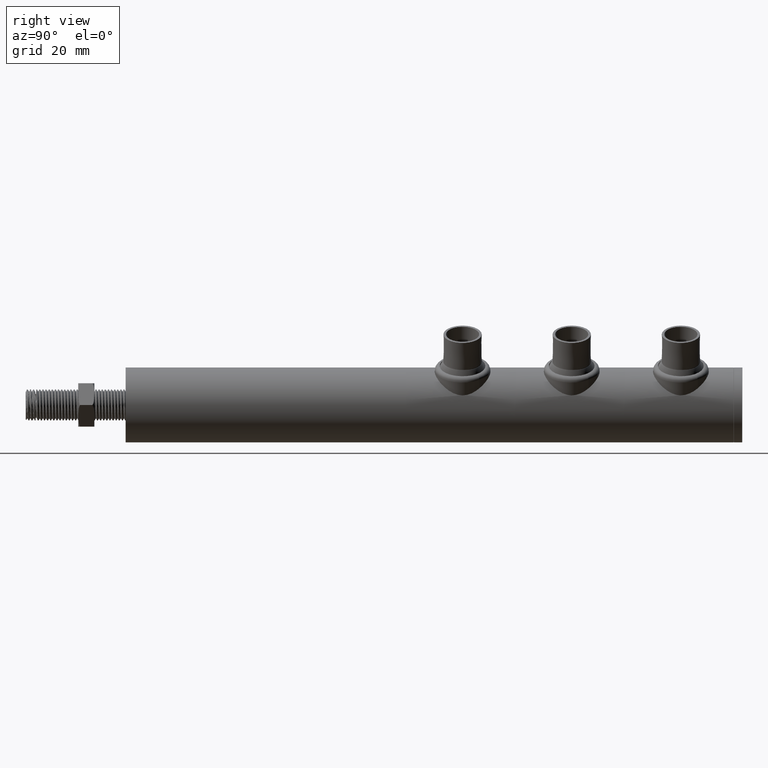
[diagram: clean part render]
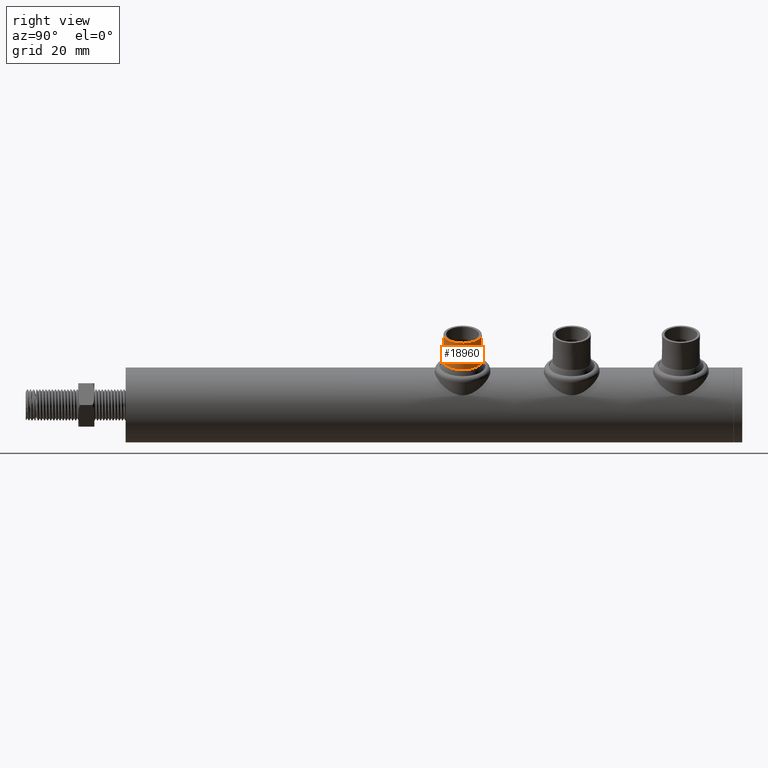
[diagram: same view with one face highlighted and labeled with its STEP entity id]
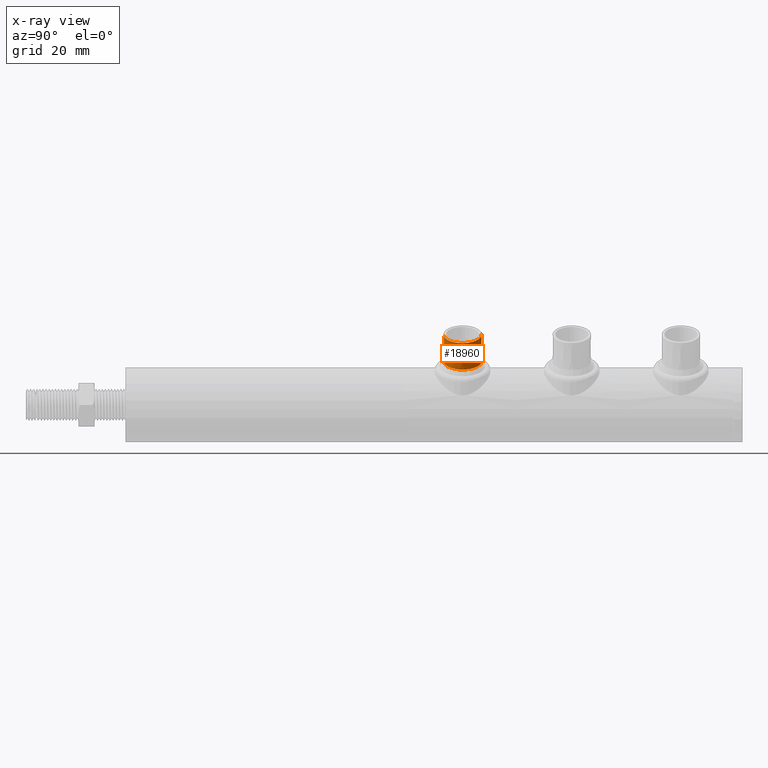
[diagram: x-ray of the same camera — body ghosted, the highlighted face saturated]
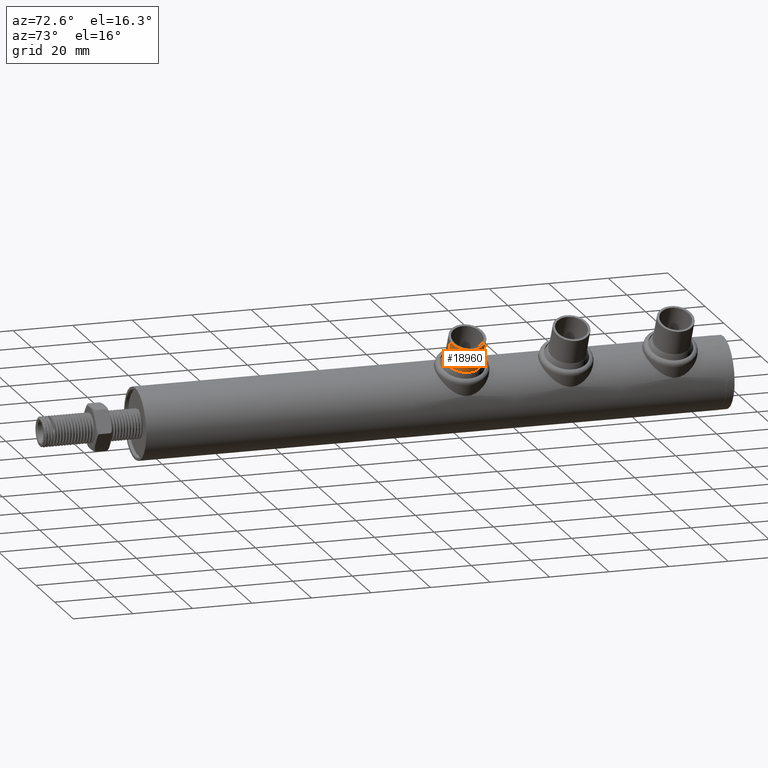
[diagram: same view with one face highlighted and labeled with its STEP entity id]
A machine part, right view. The second image highlights one B-rep face of the part: STEP entity #18960.
The next image is the same camera in x-ray: the body ghosted, the highlighted face saturated — about 0% of this face is hidden behind the body in this view.
A second angle (auxiliary view) of the same face is appended — the face is thin or edge-on in the first view.
In plain terms, the highlighted conical surface has half-angle 0.292 deg.
Its self-contained STEP definition (entity closure, byte-faithful):
#1470 = EDGE_CURVE ( 'NONE', #14497, #22212, #2767, .T. ) ;
#2180 = CARTESIAN_POINT ( 'NONE',  ( 7.591623151110151837E-16, 8.571748200232928383, 6.199030738001956919 ) ) ;
#2372 = CARTESIAN_POINT ( 'NONE',  ( 7.561910713532464816E-16, 18.10050923161665537, 6.150506645017149943 ) ) ;
#2502 = CARTESIAN_POINT ( 'NONE',  ( 0.000000000000000000, 18.10050923161665537, 0.000000000000000000 ) ) ;
#2767 = LINE ( 'NONE', #20653, #15896 ) ;
#2935 = CARTESIAN_POINT ( 'NONE',  ( 0.000000000000000000, 8.400127066074952964, 0.000000000000000000 ) ) ;
#3262 = ORIENTED_EDGE ( 'NONE', *, *, #1470, .F. ) ;
#3464 = EDGE_LOOP ( 'NONE', ( #3262, #13472, #21502, #3983 ) ) ;
#3983 = ORIENTED_EDGE ( 'NONE', *, *, #7914, .T. ) ;
#4077 = AXIS2_PLACEMENT_3D ( 'NONE', #13331, #6342, #7933 ) ;
#4906 = DIRECTION ( 'NONE',  ( 0.000000000000000000, 0.000000000000000000, -1.000000000000000000 ) ) ;
#5131 = CIRCLE ( 'NONE', #20994, 6.150506645017149943 ) ;
#6245 = VERTEX_POINT ( 'NONE', #8593 ) ;
#6342 = DIRECTION ( 'NONE',  ( 0.000000000000000000, 1.000000000000000000, 0.000000000000000000 ) ) ;
#7861 = CARTESIAN_POINT ( 'NONE',  ( 0.000000000000000000, 18.10050923161665537, -6.150506645017149943 ) ) ;
#7914 = EDGE_CURVE ( 'NONE', #6245, #22212, #11336, .T. ) ;
#7933 = DIRECTION ( 'NONE',  ( 0.000000000000000000, 0.000000000000000000, -1.000000000000000000 ) ) ;
#8000 = LINE ( 'NONE', #10359, #15848 ) ;
#8200 = CONICAL_SURFACE ( 'NONE', #17066, 6.199904698409255843, 0.005092338173188788904 ) ;
#8593 = CARTESIAN_POINT ( 'NONE',  ( 0.000000000000000000, 8.571748200232928383, -6.199030738001956919 ) ) ;
#9654 = DIRECTION ( 'NONE',  ( -0.000000000000000000, -1.000000000000000000, -0.000000000000000000 ) ) ;
#10359 = CARTESIAN_POINT ( 'NONE',  ( 0.000000000000000000, 8.400127066074952964, -6.199904698409255843 ) ) ;
#10705 = FACE_OUTER_BOUND ( 'NONE', #3464, .T. ) ;
#11336 = CIRCLE ( 'NONE', #4077, 6.199030738001957808 ) ;
#11953 = DIRECTION ( 'NONE',  ( -0.000000000000000000, -1.000000000000000000, -0.000000000000000000 ) ) ;
#13331 = CARTESIAN_POINT ( 'NONE',  ( 0.000000000000000000, 8.571748200232928383, 0.000000000000000000 ) ) ;
#13472 = ORIENTED_EDGE ( 'NONE', *, *, #20117, .T. ) ;
#13512 = DIRECTION ( 'NONE',  ( 0.000000000000000000, 0.000000000000000000, 1.000000000000000000 ) ) ;
#13513 = DIRECTION ( 'NONE',  ( 6.236288690745815310E-19, -0.9999870340739843710, 0.005092316164209765086 ) ) ;
#14497 = VERTEX_POINT ( 'NONE', #2372 ) ;
#15848 = VECTOR ( 'NONE', #23124, 999.9999999999998863 ) ;
#15896 = VECTOR ( 'NONE', #13513, 999.9999999999998863 ) ;
#17066 = AXIS2_PLACEMENT_3D ( 'NONE', #2935, #11953, #4906 ) ;
#17637 = EDGE_CURVE ( 'NONE', #17980, #6245, #8000, .T. ) ;
#17980 = VERTEX_POINT ( 'NONE', #7861 ) ;
#18960 = ADVANCED_FACE ( 'NONE', ( #10705 ), #8200, .T. ) ;
#20117 = EDGE_CURVE ( 'NONE', #14497, #17980, #5131, .T. ) ;
#20653 = CARTESIAN_POINT ( 'NONE',  ( 7.592693443925531704E-16, 8.400127066074952964, 6.199904698409255843 ) ) ;
#20994 = AXIS2_PLACEMENT_3D ( 'NONE', #2502, #9654, #13512 ) ;
#21502 = ORIENTED_EDGE ( 'NONE', *, *, #17637, .T. ) ;
#22212 = VERTEX_POINT ( 'NONE', #2180 ) ;
#23124 = DIRECTION ( 'NONE',  ( 0.000000000000000000, -0.9999870340739843710, -0.005092316164209765086 ) ) ;